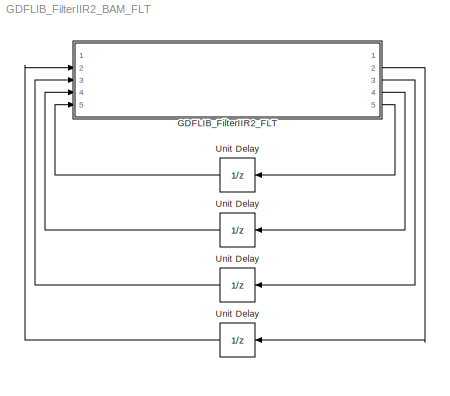
MODEL GDFLIB_FilterIIR2_BAM_FLT
KIND model
BLOCK [UnitDelay]  Unit Delay
  SID = 1
  SampleTime = -1
BLOCK [UnitDelay]  Unit Delay 
  SID = 2
  SampleTime = -1
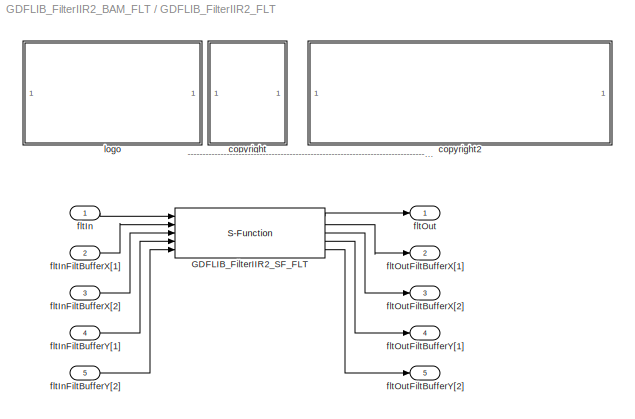
BLOCK [SubSystem] GDFLIB_FilterIIR2_FLT
  Ports = [5, 5]
  RequestExecContextInheritance = off
  SID = 3
BLOCK [S-Function] GDFLIB_FilterIIR2_FLT/GDFLIB_FilterIIR2_SF_FLT
  EnableBusSupport = off
  FunctionName = GDFLIB_FilterIIR2_SF_FLT
  Parameters = fltB0,fltB1,fltB2,fltA1,fltA2
  Ports = [5, 5]
  SID = 9
BLOCK [SubSystem] GDFLIB_FilterIIR2_FLT/<copyright redacted>
  Ports = []
  RequestExecContextInheritance = off
  SID = 10
BLOCK [SubSystem] GDFLIB_FilterIIR2_FLT/copyright2
  Ports = []
  RequestExecContextInheritance = off
  SID = 11
BLOCK [Inport] GDFLIB_FilterIIR2_FLT/fltIn
  IconDisplay = Port number
  SID = 4
BLOCK [Inport] GDFLIB_FilterIIR2_FLT/fltInFiltBufferX[1]
  IconDisplay = Port number
  Port = 2
  SID = 5
BLOCK [Inport] GDFLIB_FilterIIR2_FLT/fltInFiltBufferX[2]
  IconDisplay = Port number
  Port = 3
  SID = 6
BLOCK [Inport] GDFLIB_FilterIIR2_FLT/fltInFiltBufferY[1]
  IconDisplay = Port number
  Port = 4
  SID = 7
BLOCK [Inport] GDFLIB_FilterIIR2_FLT/fltInFiltBufferY[2]
  IconDisplay = Port number
  Port = 5
  SID = 8
BLOCK [Outport] GDFLIB_FilterIIR2_FLT/fltOut
  IconDisplay = Port number
  SID = 13
BLOCK [Outport] GDFLIB_FilterIIR2_FLT/fltOutFiltBufferX[1]
  IconDisplay = Port number
  Port = 2
  SID = 14
BLOCK [Outport] GDFLIB_FilterIIR2_FLT/fltOutFiltBufferX[2]
  IconDisplay = Port number
  Port = 3
  SID = 15
BLOCK [Outport] GDFLIB_FilterIIR2_FLT/fltOutFiltBufferY[1]
  IconDisplay = Port number
  Port = 4
  SID = 16
BLOCK [Outport] GDFLIB_FilterIIR2_FLT/fltOutFiltBufferY[2]
  IconDisplay = Port number
  Port = 5
  SID = 17
BLOCK [SubSystem] GDFLIB_FilterIIR2_FLT/logo
  Ports = []
  RequestExecContextInheritance = off
  SID = 12
BLOCK [UnitDelay] Unit Delay
  SID = 19
  SampleTime = -1
BLOCK [UnitDelay] Unit Delay 
  SID = 20
  SampleTime = -1
ANNOTATION GDFLIB_FilterIIR2_FLT: ---------------------------------------------------------------------------------------------------------------------------------------------------------------------------------------------------
LINE  Unit Delay :1 -> GDFLIB_FilterIIR2_FLT:2
LINE  Unit Delay:1 -> GDFLIB_FilterIIR2_FLT:3
LINE GDFLIB_FilterIIR2_FLT/GDFLIB_FilterIIR2_SF_FLT:1 -> GDFLIB_FilterIIR2_FLT/fltOut:1
LINE GDFLIB_FilterIIR2_FLT/GDFLIB_FilterIIR2_SF_FLT:2 -> GDFLIB_FilterIIR2_FLT/fltOutFiltBufferX[1]:1
LINE GDFLIB_FilterIIR2_FLT/GDFLIB_FilterIIR2_SF_FLT:3 -> GDFLIB_FilterIIR2_FLT/fltOutFiltBufferX[2]:1
LINE GDFLIB_FilterIIR2_FLT/GDFLIB_FilterIIR2_SF_FLT:4 -> GDFLIB_FilterIIR2_FLT/fltOutFiltBufferY[1]:1
LINE GDFLIB_FilterIIR2_FLT/GDFLIB_FilterIIR2_SF_FLT:5 -> GDFLIB_FilterIIR2_FLT/fltOutFiltBufferY[2]:1
LINE GDFLIB_FilterIIR2_FLT/fltIn:1 -> GDFLIB_FilterIIR2_FLT/GDFLIB_FilterIIR2_SF_FLT:1
LINE GDFLIB_FilterIIR2_FLT/fltInFiltBufferX[1]:1 -> GDFLIB_FilterIIR2_FLT/GDFLIB_FilterIIR2_SF_FLT:2
LINE GDFLIB_FilterIIR2_FLT/fltInFiltBufferX[2]:1 -> GDFLIB_FilterIIR2_FLT/GDFLIB_FilterIIR2_SF_FLT:3
LINE GDFLIB_FilterIIR2_FLT/fltInFiltBufferY[1]:1 -> GDFLIB_FilterIIR2_FLT/GDFLIB_FilterIIR2_SF_FLT:4
LINE GDFLIB_FilterIIR2_FLT/fltInFiltBufferY[2]:1 -> GDFLIB_FilterIIR2_FLT/GDFLIB_FilterIIR2_SF_FLT:5
LINE GDFLIB_FilterIIR2_FLT:2 ->  Unit Delay :1
LINE GDFLIB_FilterIIR2_FLT:3 ->  Unit Delay:1
LINE GDFLIB_FilterIIR2_FLT:4 -> Unit Delay :1
LINE GDFLIB_FilterIIR2_FLT:5 -> Unit Delay:1
LINE Unit Delay :1 -> GDFLIB_FilterIIR2_FLT:4
LINE Unit Delay:1 -> GDFLIB_FilterIIR2_FLT:5
